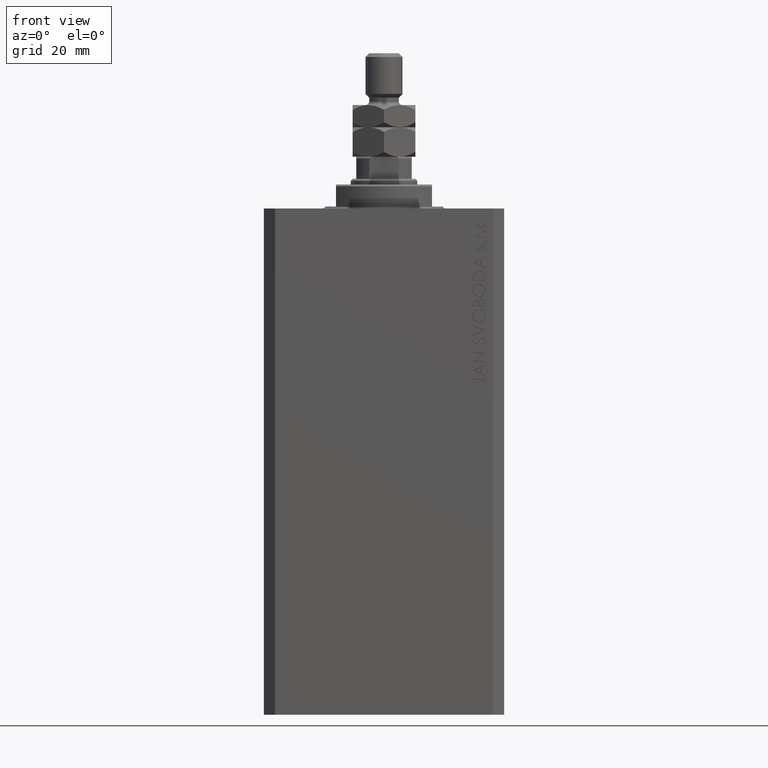
[diagram: clean part render]
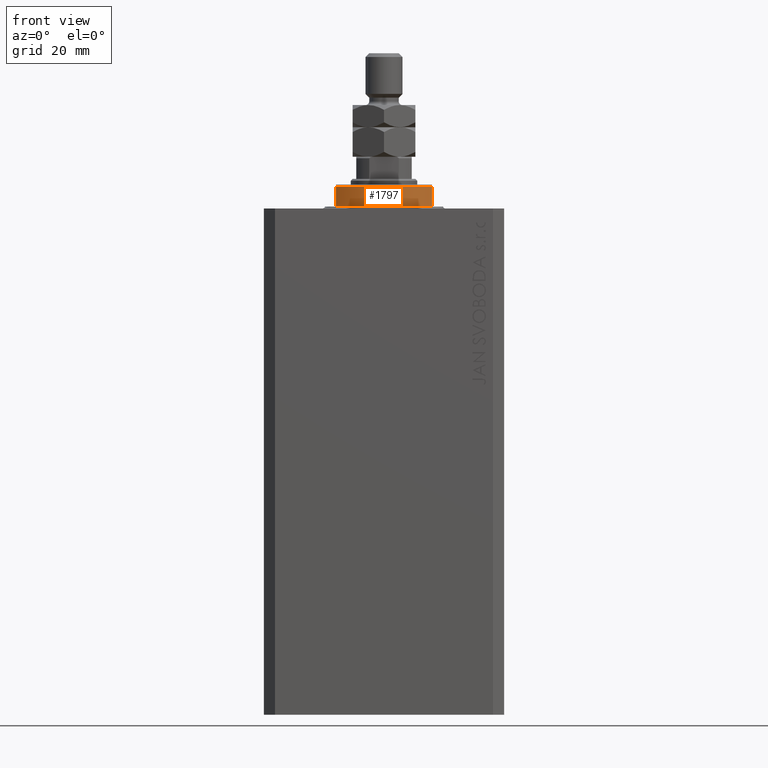
[diagram: same view with one face highlighted and labeled with its STEP entity id]
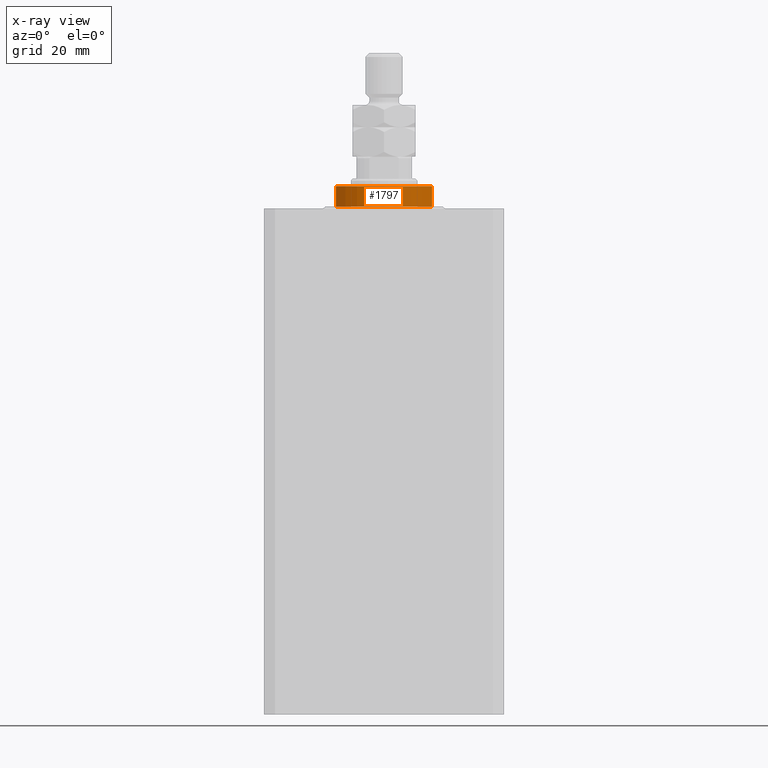
[diagram: x-ray of the same camera — body ghosted, the highlighted face saturated]
A machine part, front view. The second image highlights one B-rep face of the part: STEP entity #1797.
The next image is the same camera in x-ray: the body ghosted, the highlighted face saturated — about 0% of this face is hidden behind the body in this view.
In plain terms, the highlighted cylindrical surface (partial cylindrical patch) has radius 16 mm, axis along (0, 0, -1).
Its self-contained STEP definition (entity closure, byte-faithful):
#1797 = ADVANCED_FACE ( 'NONE', ( #13111 ), #12614, .T. ) ;
#2116 = CARTESIAN_POINT ( 'NONE',  ( 0.000000000000000000, 0.000000000000000000, -0.4999999999999995559 ) ) ;
#6169 = VERTEX_POINT ( 'NONE', #43863 ) ;
#6453 = ORIENTED_EDGE ( 'NONE', *, *, #42369, .T. ) ;
#6743 = EDGE_CURVE ( 'NONE', #37914, #30291, #21466, .T. ) ;
#9028 = DIRECTION ( 'NONE',  ( 0.000000000000000000, 0.000000000000000000, -1.000000000000000000 ) ) ;
#12036 = DIRECTION ( 'NONE',  ( -1.000000000000000000, 0.000000000000000000, 0.000000000000000000 ) ) ;
#12336 = ORIENTED_EDGE ( 'NONE', *, *, #37964, .T. ) ;
#12379 = DIRECTION ( 'NONE',  ( -0.000000000000000000, -0.000000000000000000, 1.000000000000000000 ) ) ;
#12614 = CYLINDRICAL_SURFACE ( 'NONE', #48173, 16.00000000000000000 ) ;
#13111 = FACE_OUTER_BOUND ( 'NONE', #41170, .T. ) ;
#16187 = CARTESIAN_POINT ( 'NONE',  ( 13.00000000000000000, -9.327379053088813876, -6.500000000000000000 ) ) ;
#17368 = DIRECTION ( 'NONE',  ( -0.000000000000000000, -0.000000000000000000, -1.000000000000000000 ) ) ;
#21466 = LINE ( 'NONE', #33538, #28587 ) ;
#25396 = CIRCLE ( 'NONE', #32582, 16.00000000000000000 ) ;
#26307 = CIRCLE ( 'NONE', #28667, 16.00000000000000000 ) ;
#27039 = VECTOR ( 'NONE', #9028, 1000.000000000000000 ) ;
#28587 = VECTOR ( 'NONE', #44164, 1000.000000000000000 ) ;
#28667 = AXIS2_PLACEMENT_3D ( 'NONE', #41645, #45597, #12036 ) ;
#29185 = DIRECTION ( 'NONE',  ( 1.000000000000000000, 0.000000000000000000, 0.000000000000000000 ) ) ;
#29391 = ORIENTED_EDGE ( 'NONE', *, *, #6743, .T. ) ;
#30291 = VERTEX_POINT ( 'NONE', #40316 ) ;
#30870 = DIRECTION ( 'NONE',  ( 1.000000000000000000, 0.000000000000000000, 0.000000000000000000 ) ) ;
#32206 = ORIENTED_EDGE ( 'NONE', *, *, #41030, .F. ) ;
#32582 = AXIS2_PLACEMENT_3D ( 'NONE', #2116, #17368, #29185 ) ;
#33538 = CARTESIAN_POINT ( 'NONE',  ( -13.00000000000000000, -9.327379053088813876, -6.500000000000000000 ) ) ;
#34704 = CARTESIAN_POINT ( 'NONE',  ( 13.00000000000000000, -9.327379053088815652, -6.000000000000023981 ) ) ;
#35306 = CARTESIAN_POINT ( 'NONE',  ( 0.000000000000000000, 0.000000000000000000, -6.500000000000000000 ) ) ;
#37914 = VERTEX_POINT ( 'NONE', #42533 ) ;
#37964 = EDGE_CURVE ( 'NONE', #6169, #37914, #25396, .T. ) ;
#38375 = LINE ( 'NONE', #16187, #27039 ) ;
#38427 = VERTEX_POINT ( 'NONE', #34704 ) ;
#40316 = CARTESIAN_POINT ( 'NONE',  ( -13.00000000000000000, -9.327379053088815652, -6.000000000000023981 ) ) ;
#41030 = EDGE_CURVE ( 'NONE', #6169, #38427, #38375, .T. ) ;
#41170 = EDGE_LOOP ( 'NONE', ( #32206, #12336, #29391, #6453 ) ) ;
#41645 = CARTESIAN_POINT ( 'NONE',  ( 0.000000000000000000, 0.000000000000000000, -6.000000000000023981 ) ) ;
#42369 = EDGE_CURVE ( 'NONE', #30291, #38427, #26307, .T. ) ;
#42533 = CARTESIAN_POINT ( 'NONE',  ( -13.00000000000000000, -9.327379053088815652, -0.4999999999999995559 ) ) ;
#43863 = CARTESIAN_POINT ( 'NONE',  ( 13.00000000000000000, -9.327379053088815652, -0.4999999999999995559 ) ) ;
#44164 = DIRECTION ( 'NONE',  ( 0.000000000000000000, 0.000000000000000000, -1.000000000000000000 ) ) ;
#45597 = DIRECTION ( 'NONE',  ( 0.000000000000000000, 0.000000000000000000, 1.000000000000000000 ) ) ;
#48173 = AXIS2_PLACEMENT_3D ( 'NONE', #35306, #12379, #30870 ) ;